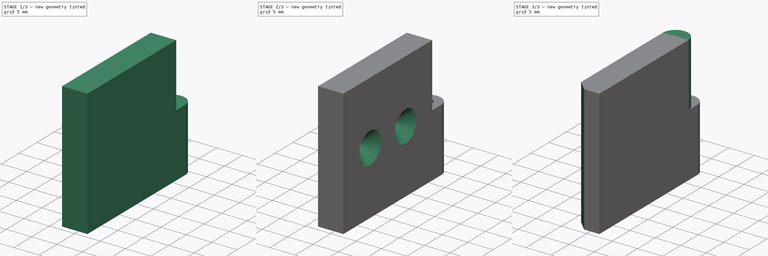
[diagram: build sequence overview — one tinted view per stage of 3, left to right]
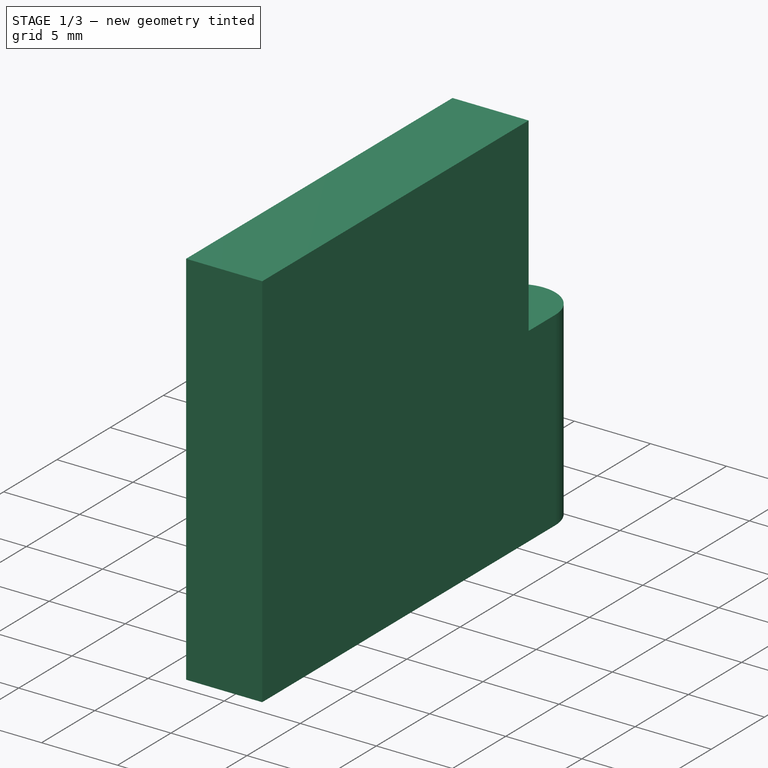
[diagram: stage 1 of 3 — iso view after this stage's code; geometry added in this stage tinted green]
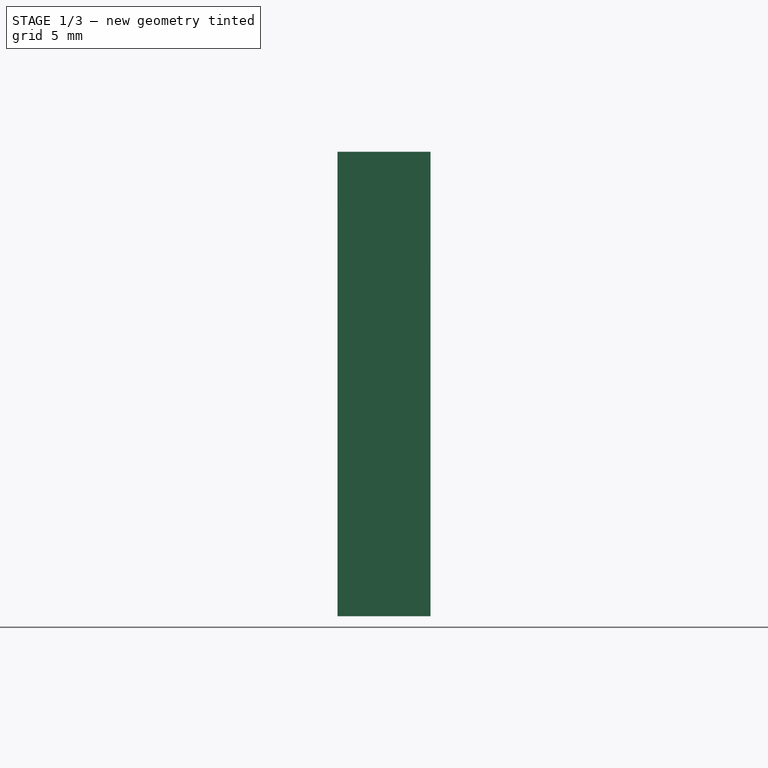
[diagram: stage 1 of 3 — front view after this stage's code; geometry added in this stage tinted green]
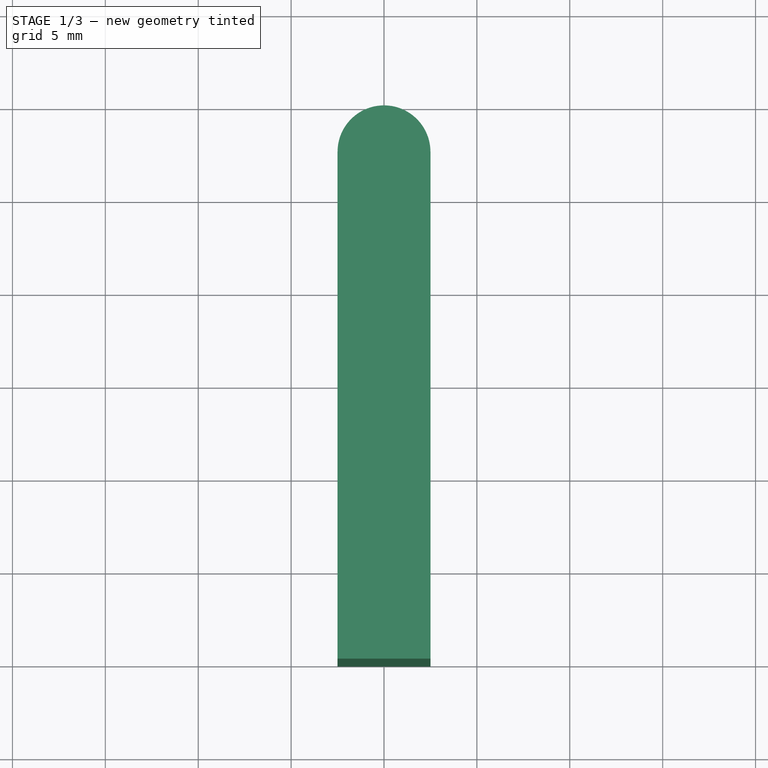
[diagram: stage 1 of 3 — top view after this stage's code; geometry added in this stage tinted green]
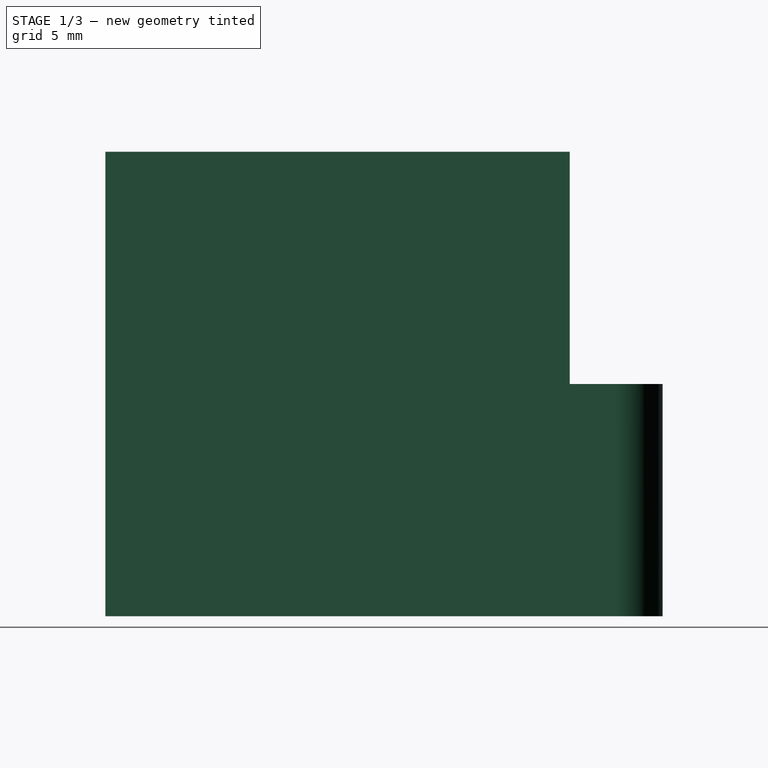
[diagram: stage 1 of 3 — right view after this stage's code; geometry added in this stage tinted green]
FCSTD DOCUMENT  (FreeCAD 0.21RUnknown)
Label: lock_half
License: All rights reserved
LicenseURL: https://en.wikipedia.org/wiki/All_rights_reserved
objects: Sketcher::SketchObject×5, PartDesign::Pocket×2, Part::Extrusion×1, PartDesign::Pad×1, PartDesign::Hole×1, PartDesign::Chamfer×1, PartDesign::Body×1
note: 17 computed .brp shape members not serialized (recipe doc carries the construction recipe); baked Part::Feature solids carry a one-line shape summary decoded from their .brp

FEATURE [Sketcher::SketchObject] CopySketch  label="Profile"
  FullyConstrained = true
  MapMode = 5
  Support = -> [XY_Plane]
  sketch-geometry (9):
    g0: LineSegment StartX=-2.5 StartY=-15 StartZ=0 EndX=-2.5 EndY=12.5 EndZ=0
    g1: LineSegment StartX=2.5 StartY=12.5 StartZ=0 EndX=2.5 EndY=-15 EndZ=0
    g2: LineSegment StartX=2.5 StartY=-15 StartZ=0 EndX=-2.5 EndY=-15 EndZ=0
    g3: GeomPoint X=0 Y=0 Z=0
    g4: ArcOfCircle CenterX=1e-16 CenterY=12.5 CenterZ=0 NormalX=0 NormalY=0 NormalZ=1 AngleXU=0 Radius=2.5 StartAngle=6.00078e-09 EndAngle=3.14159
    g5: GeomPoint X=0 Y=15 Z=0
    g6: GeomPoint X=0 Y=-15 Z=0
    g7: LineSegment StartX=0 StartY=0 StartZ=0 EndX=0 EndY=15 EndZ=0
    g8: LineSegment StartX=0 StartY=0 StartZ=0 EndX=0 EndY=-15 EndZ=0
  constraints (22):
    c: Coincident(g1,g2)
    c: Coincident(g2,g0)
    c: Horizontal(g2)
    c: Vertical(g0)
    c: Vertical(g1)
    c: Distance(g0) = 27.5
    c: Coincident(g4,g1)
    c: Coincident(g4,g0)
    c: Radius(g4) = 2.5
    c: Distance(g2) = 5
    c: Distance(g3,g0) = 2.5
    c: Equal(g1,g0)
    c: PointOnObject(g5,g4)
    c: PointOnObject(g5,g-2)
    c: PointOnObject(g6,g2)
    c: PointOnObject(g6,g-2)
    c: Coincident(g7,g3)
    c: Coincident(g7,g5)
    c: Coincident(g8,g3)
    c: Coincident(g8,g6)
    c: Equal(g7,g8)
    c: Coincident(g-1,g3)
FEATURE [PartDesign::Pad] Pad
  Direction = (0,0,1)
  Length = 25
  Length2 = 10
  Profile = -> CopySketch
  ReferenceAxis = -> CopySketch [N_Axis]
  Type = 0
FEATURE [Sketcher::SketchObject] Sketch001  label="Cut"
  FullyConstrained = true
  MapMode = 5
  Placement = pos=(0,0,25) rot=(0,0,1;0rad)
  Support = -> [Pad]
  sketch-geometry (5):
    g0: LineSegment StartX=-2.5 StartY=10 StartZ=0 EndX=-2.5 EndY=15 EndZ=0
    g1: LineSegment StartX=-2.5 StartY=15 StartZ=0 EndX=2.5 EndY=15 EndZ=0
    g2: LineSegment StartX=2.5 StartY=15 StartZ=0 EndX=2.5 EndY=10 EndZ=0
    g3: LineSegment StartX=2.5 StartY=10 StartZ=0 EndX=-2.5 EndY=10 EndZ=0
    g4: GeomPoint X=0 Y=12.5 Z=0
  constraints (13):
    c: Coincident(g0,g1)
    c: Coincident(g1,g2)
    c: Coincident(g2,g3)
    c: Coincident(g3,g0)
    c: Horizontal(g1)
    c: Horizontal(g3)
    c: Vertical(g0)
    c: Vertical(g2)
    c: Symmetric(g1,g0,g4)
    c: PointOnObject(g4,g-2)
    c: Distance(g3) = 5
    c: Distance(g2) = 5
    c: Distance(g-1,g3) = 10
FEATURE [PartDesign::Pocket] Pocket001
  BaseFeature = -> Pad
  Direction = (0,0,-1)
  Length = 12.5
  Length2 = 5
  Profile = -> Sketch001
  ReferenceAxis = -> Sketch001 [N_Axis]
  Type = 0
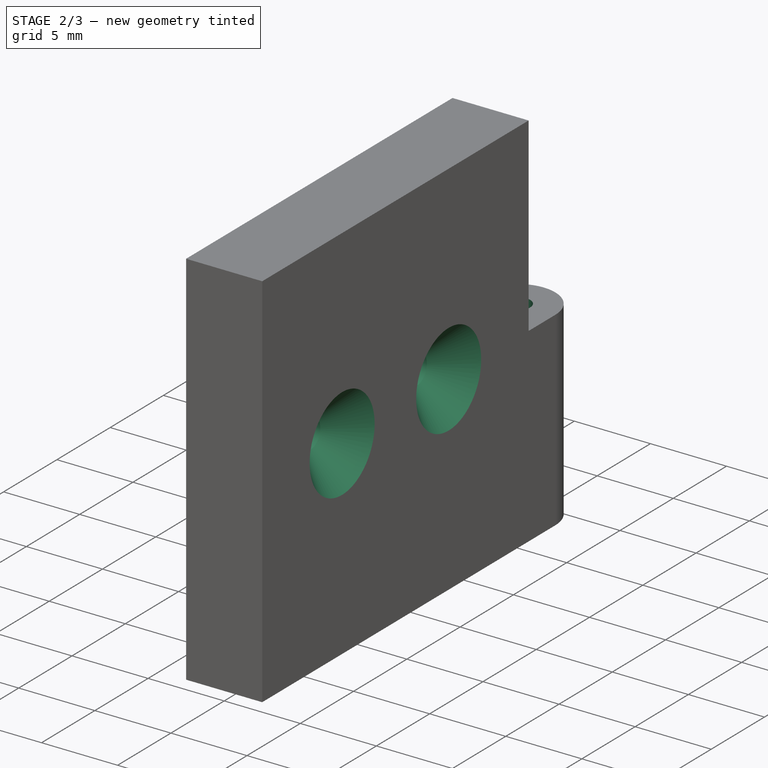
[diagram: stage 2 of 3 — iso view after this stage's code; geometry added in this stage tinted green]
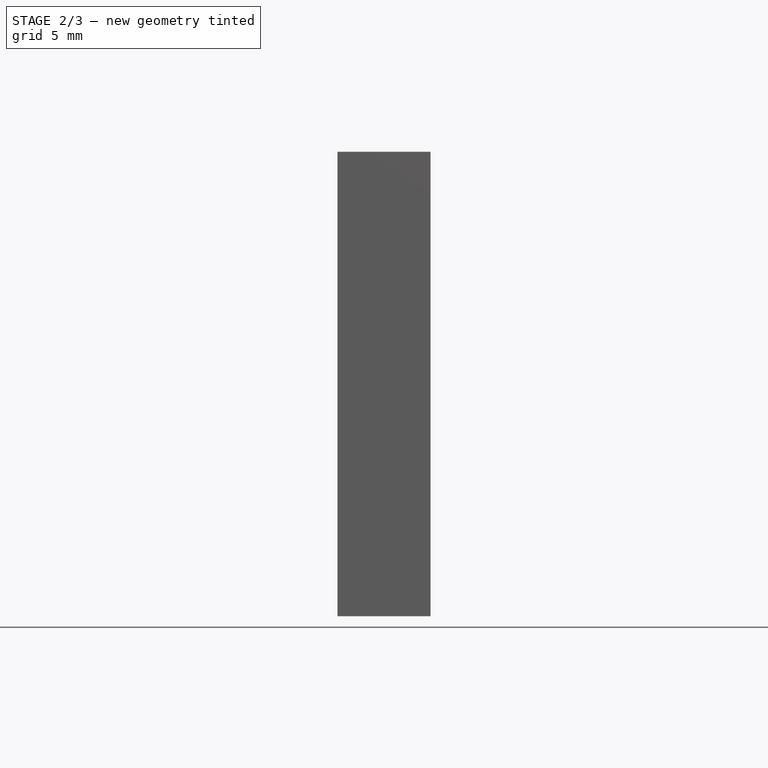
[diagram: stage 2 of 3 — front view after this stage's code; geometry added in this stage tinted green]
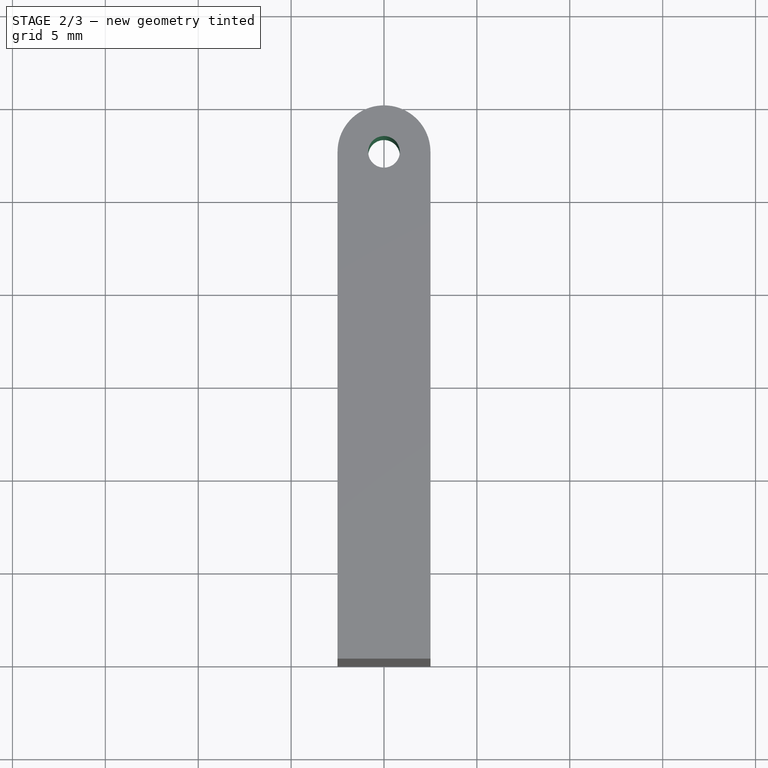
[diagram: stage 2 of 3 — top view after this stage's code; geometry added in this stage tinted green]
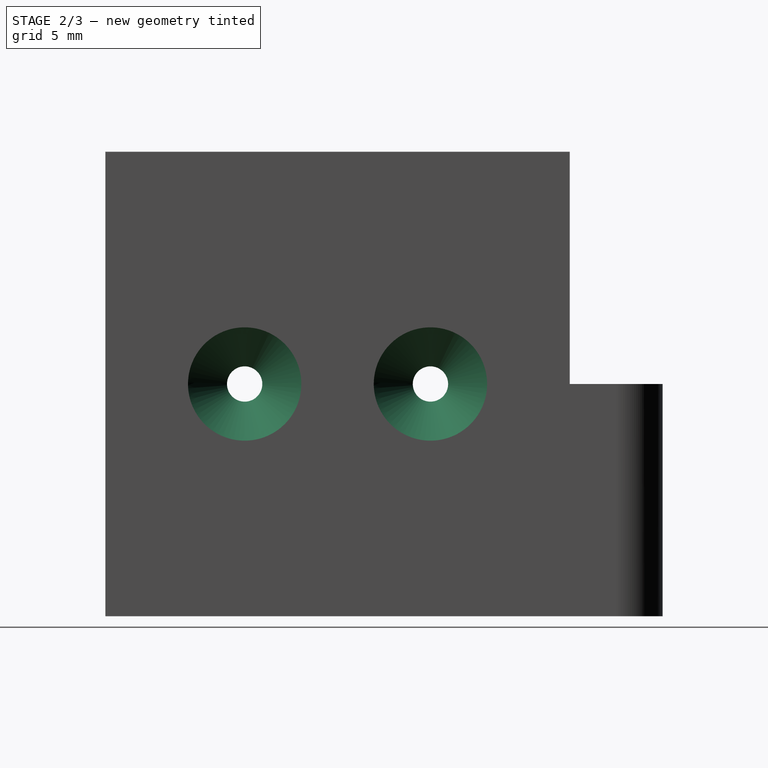
[diagram: stage 2 of 3 — right view after this stage's code; geometry added in this stage tinted green]
FEATURE [Sketcher::SketchObject] Sketch002  label="Hole"
  FullyConstrained = true
  MapMode = 5
  Placement = pos=(0,0,0) rot=(1,0,0;3.14159rad)
  Support = -> [Pocket001]
  sketch-geometry (1):
    g0: Circle CenterX=0 CenterY=-12.5 CenterZ=0 NormalX=0 NormalY=0 NormalZ=1 AngleXU=0 Radius=0.85
  constraints (3):
    c: PointOnObject(g0,g-2)
    c: Distance(g0,g-1) = 12.5
    c: Diameter(g0) = 1.7
FEATURE [PartDesign::Pocket] Pocket
  BaseFeature = -> Pocket001
  Direction = (0,0,1)
  Length = 5
  Length2 = 5
  Profile = -> Sketch002
  ReferenceAxis = -> Sketch002 [N_Axis]
  Type = 1
FEATURE [Sketcher::SketchObject] Sketch003
  FullyConstrained = true
  MapMode = 5
  Placement = pos=(2.5,0,0) rot=(0.57735,0.57735,0.57735;2.0944rad)
  Support = -> [Pocket]
  sketch-geometry (2):
    g0: Circle CenterX=2.5 CenterY=12.5 CenterZ=0 NormalX=0 NormalY=0 NormalZ=1 AngleXU=0 Radius=2
    g1: Circle CenterX=-7.5 CenterY=12.5 CenterZ=0 NormalX=0 NormalY=0 NormalZ=1 AngleXU=0 Radius=2
  constraints (6):
    c: Radius(g0) = 2
    c: Equal(g1,g0)
    c: Distance(g0,g-2) = 2.5
    c: Distance(g1,g-2) = 7.5
    c: Distance(g1,g-1) = 12.5
    c: Distance(g0,g-1) = 12.5
FEATURE [PartDesign::Hole] Hole  label="Hole001"
  BaseFeature = -> Pocket
  CustomThreadClearance = 0
  Depth = 25
  DepthType = 0
  Diameter = 1.9
  DrillForDepth = false
  DrillPoint = 1
  DrillPointAngle = 118
  HoleCutCountersinkAngle = 90
  HoleCutCustomValues = false
  HoleCutDepth = 0
  HoleCutDiameter = 6.1
  HoleCutType = 2
  ModelThread = false
  Profile = -> Sketch003
  Tapered = false
  TaperedAngle = 90
  ThreadClass = 0
  ThreadDepth = 25
  ThreadDepthType = 0
  ThreadDirection = 0
  ThreadFit = 0
  ThreadSize = 0
  ThreadType = 4
  Threaded = false
  UseCustomThreadClearance = false
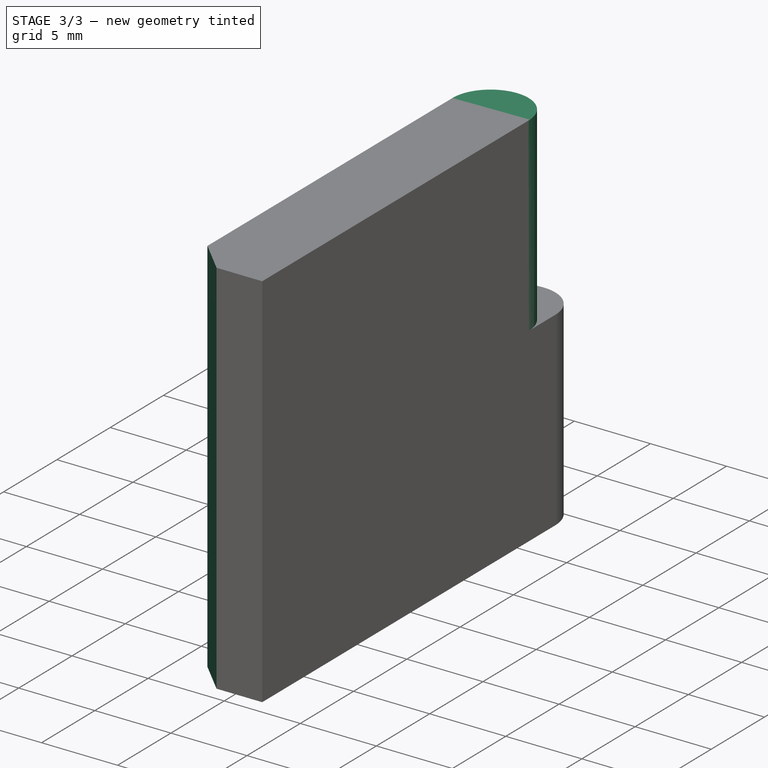
[diagram: stage 3 of 3 — iso view after this stage's code; geometry added in this stage tinted green]
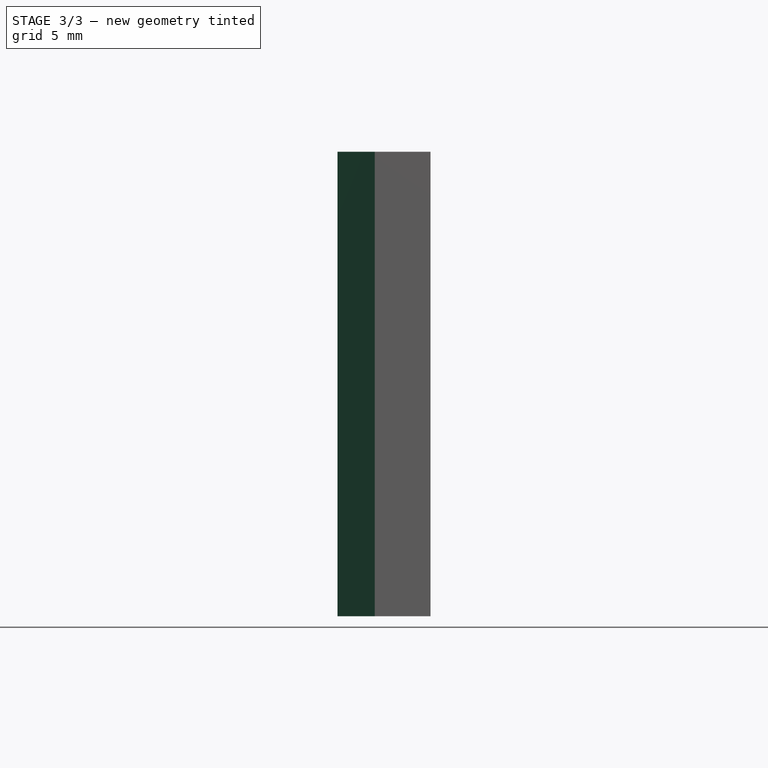
[diagram: stage 3 of 3 — front view after this stage's code; geometry added in this stage tinted green]
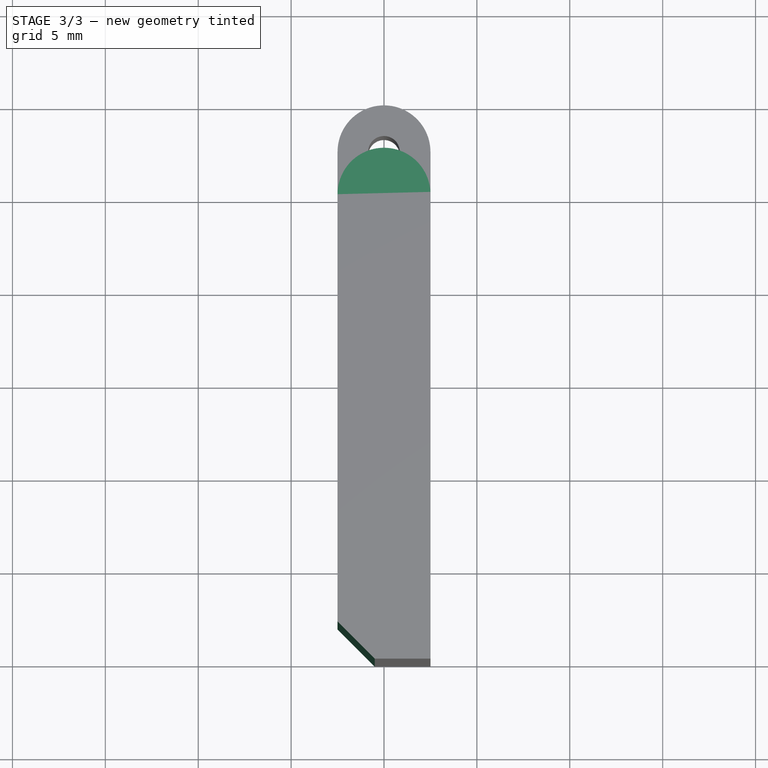
[diagram: stage 3 of 3 — top view after this stage's code; geometry added in this stage tinted green]
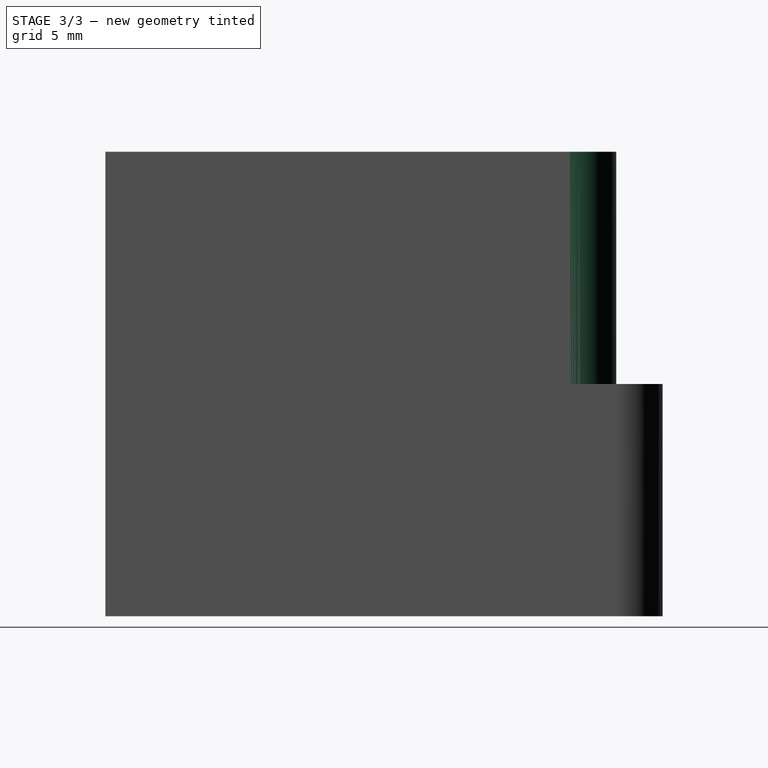
[diagram: stage 3 of 3 — right view after this stage's code; geometry added in this stage tinted green]
FEATURE [Sketcher::SketchObject] Sketch
  FullyConstrained = true
  sketch-geometry (5):
    g0: LineSegment StartX=-2.5 StartY=-12.5 StartZ=0 EndX=-2.5 EndY=10 EndZ=0
    g1: LineSegment StartX=2.5 StartY=10 StartZ=0 EndX=2.5 EndY=-12.5 EndZ=0
    g2: LineSegment StartX=2.5 StartY=-12.5 StartZ=0 EndX=-2.5 EndY=-12.5 EndZ=0
    g3: GeomPoint X=0 Y=0 Z=0
    g4: ArcOfCircle CenterX=3.48302e-11 CenterY=10 CenterZ=0 NormalX=0 NormalY=0 NormalZ=1 AngleXU=0 Radius=2.5 StartAngle=6.28319 EndAngle=9.42478
  constraints (14):
    c: Coincident(g1,g2)
    c: Coincident(g2,g0)
    c: Horizontal(g2)
    c: Vertical(g0)
    c: Vertical(g1)
    c: Coincident(g3,g-1)
    c: Distance(g1) = 22.5
    c: Distance(g0) = 22.5
    c: Coincident(g4,g1)
    c: Coincident(g4,g0)
    c: Radius(g4) = 2.5
    c: Distance(g2) = 5
    c: Distance(g3,g2) = 12.5
    c: Distance(g3,g0) = 2.5
FEATURE [Part::Extrusion] Extrude
  Base = -> Sketch
  Dir = (0,0,1)
  DirMode = 2
  FaceMakerClass = Part::FaceMakerBullseye
  LengthFwd = 25
  LengthRev = 0
  Solid = true
  Symmetric = false
FEATURE [PartDesign::Chamfer] Chamfer
  Angle = 45
  Base = -> Hole [Edge16]
  BaseFeature = -> Hole
  ChamferType = 0
  FlipDirection = false
  Size = 2
  Size2 = 1
  SupportTransform = false
  UseAllEdges = false
FEATURE [PartDesign::Body] Body
  Group = -> [CopySketch,Pad,Sketch001,Pocket001,Sketch002,Pocket,Sketch003,Hole,Chamfer]
  Origin = -> Origin
  Tip = -> Chamfer
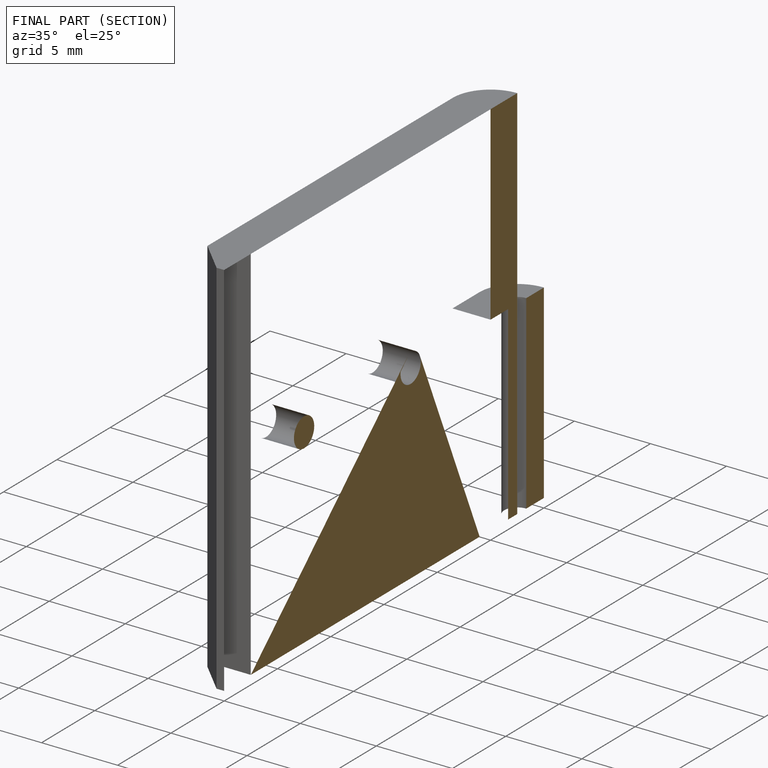
[diagram: finished part — half-section view (interior)]
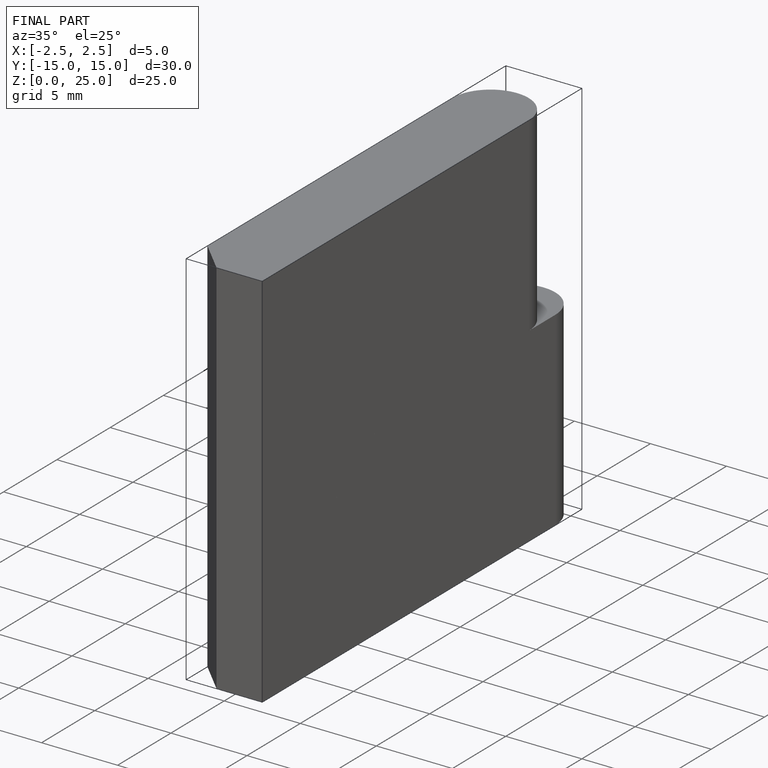
[diagram: finished part — iso view with bounding-box wireframe]
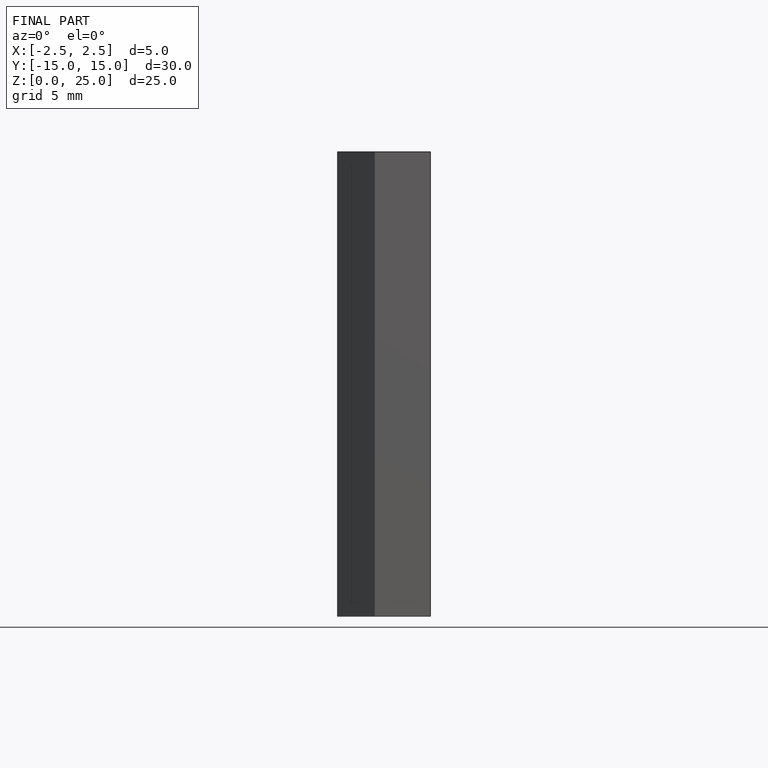
[diagram: finished part — front view with bounding-box wireframe]
